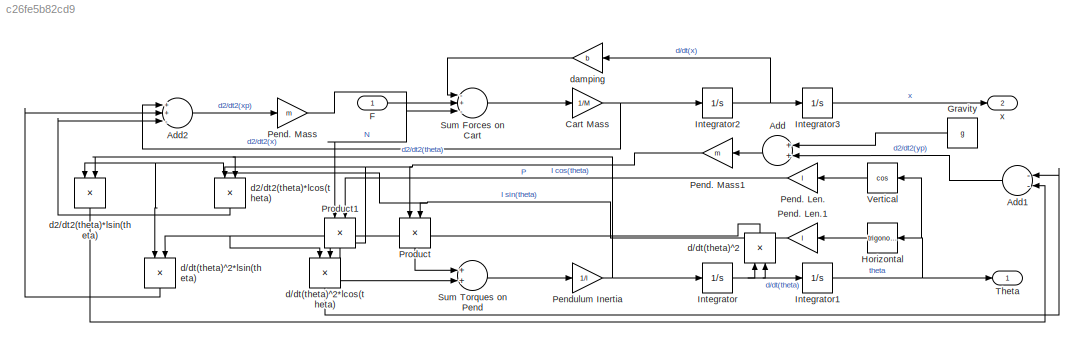
MODEL slx_c26fe5b82cd9
KIND model
CONFIG AbsTol = auto
CONFIG FixedStep = auto
CONFIG MaxStep = auto
CONFIG MinStep = auto
CONFIG RelTol = 1e-3
CONFIG SampleTimeConstraint = Unconstrained
CONFIG Solver = ode45
CONFIG SolverMode = Auto
CONFIG SolverName = ode45
CONFIG StartTime = 0.0
CONFIG StopTime = 2
BLOCK [Sum] Add
  InputSameDT = off
  OutDataTypeStr = Inherit: Inherit via internal rule
  Ports = [2, 1]
  SaturateOnIntegerOverflow = off
BLOCK [Sum] Add1
  InputSameDT = off
  Inputs = --
  OutDataTypeStr = Inherit: Inherit via internal rule
  Ports = [2, 1]
  SaturateOnIntegerOverflow = off
BLOCK [Sum] Add2
  InputSameDT = off
  Inputs = ++-
  OutDataTypeStr = Inherit: Inherit via internal rule
  Ports = [3, 1]
  SaturateOnIntegerOverflow = off
BLOCK [Gain] Cart Mass
  Gain = 1/M
  OutDataTypeStr = Inherit: Inherit via internal rule
  ParamDataTypeStr = Inherit: Inherit via internal rule
  SaturateOnIntegerOverflow = off
BLOCK [Inport] F
  IconDisplay = Port number
BLOCK [Constant] Gravity
  Value = g
BLOCK [Trigonometry] Horizontal
  Ports = [1, 1]
BLOCK [Integrator] Integrator
  Ports = [1, 1]
BLOCK [Integrator] Integrator1
  Ports = [1, 1]
BLOCK [Integrator] Integrator2
  Ports = [1, 1]
BLOCK [Integrator] Integrator3
  Ports = [1, 1]
BLOCK [Gain] Pend. Len.
  Gain = l
  OutDataTypeStr = Inherit: Inherit via internal rule
  ParamDataTypeStr = Inherit: Inherit via internal rule
  SaturateOnIntegerOverflow = off
BLOCK [Gain] Pend. Len.1
  Gain = l
  OutDataTypeStr = Inherit: Inherit via internal rule
  ParamDataTypeStr = Inherit: Inherit via internal rule
  SaturateOnIntegerOverflow = off
BLOCK [Gain] Pend. Mass
  Gain = m
  OutDataTypeStr = Inherit: Inherit via internal rule
  ParamDataTypeStr = Inherit: Inherit via internal rule
  SaturateOnIntegerOverflow = off
BLOCK [Gain] Pend. Mass1
  Gain = m
  OutDataTypeStr = Inherit: Inherit via internal rule
  ParamDataTypeStr = Inherit: Inherit via internal rule
  SaturateOnIntegerOverflow = off
BLOCK [Gain] Pendulum Inertia
  Gain = 1/l
  OutDataTypeStr = Inherit: Inherit via internal rule
  ParamDataTypeStr = Inherit: Inherit via internal rule
  SaturateOnIntegerOverflow = off
BLOCK [Product] Product
  InputSameDT = off
  OutDataTypeStr = Inherit: Inherit via internal rule
  Ports = [2, 1]
  RndMeth = Floor
  SaturateOnIntegerOverflow = off
BLOCK [Product] Product1
  InputSameDT = off
  OutDataTypeStr = Inherit: Inherit via internal rule
  Ports = [2, 1]
  RndMeth = Floor
  SaturateOnIntegerOverflow = off
BLOCK [Sum] Sum Forces on Cart
  InputSameDT = off
  Inputs = -+-
  OutDataTypeStr = Inherit: Inherit via internal rule
  Ports = [3, 1]
  SaturateOnIntegerOverflow = off
BLOCK [Sum] Sum Torques on Pend
  InputSameDT = off
  OutDataTypeStr = Inherit: Inherit via internal rule
  Ports = [2, 1]
  SaturateOnIntegerOverflow = off
BLOCK [Outport] Theta
  IconDisplay = Port number
BLOCK [Trigonometry] Vertical
  Operator = cos
  Ports = [1, 1]
BLOCK [Product] d//dt(theta)^2
  InputSameDT = off
  OutDataTypeStr = Inherit: Inherit via internal rule
  Ports = [2, 1]
  RndMeth = Floor
  SaturateOnIntegerOverflow = off
BLOCK [Product] d//dt(theta)^2*lcos(theta)
  InputSameDT = off
  OutDataTypeStr = Inherit: Inherit via internal rule
  Ports = [2, 1]
  RndMeth = Floor
  SaturateOnIntegerOverflow = off
BLOCK [Product] d//dt(theta)^2*lsin(theta)
  InputSameDT = off
  OutDataTypeStr = Inherit: Inherit via internal rule
  Ports = [2, 1]
  RndMeth = Floor
  SaturateOnIntegerOverflow = off
BLOCK [Product] d2//dt2(theta)*lcos(theta)
  InputSameDT = off
  OutDataTypeStr = Inherit: Inherit via internal rule
  Ports = [2, 1]
  RndMeth = Floor
  SaturateOnIntegerOverflow = off
BLOCK [Product] d2//dt2(theta)*lsin(theta)
  InputSameDT = off
  OutDataTypeStr = Inherit: Inherit via internal rule
  Ports = [2, 1]
  RndMeth = Floor
  SaturateOnIntegerOverflow = off
BLOCK [Gain] damping 
  Gain = b
  OutDataTypeStr = Inherit: Inherit via internal rule
  ParamDataTypeStr = Inherit: Inherit via internal rule
  SaturateOnIntegerOverflow = off
BLOCK [Outport] x
  IconDisplay = Port number
  Port = 2
LINE Add1:1 -> Add:2
LINE Add2:1 -> Pend. Mass:1
LINE Add:1 -> Pend. Mass1:1
NET Cart Mass:1 -> Add2:1, Integrator2:1
LINE F:1 -> Sum Forces on Cart:2
LINE Gravity:1 -> Add:1
LINE Horizontal:1 -> Pend. Len.1:1
NET Integrator1:1 -> Horizontal:1, Theta:1, Vertical:1
NET Integrator2:1 -> Integrator3:1, damping :1
LINE Integrator3:1 -> x:1
NET Integrator:1 -> Integrator1:1, d//dt(theta)^2:1, d//dt(theta)^2:2
NET Pend. Len.1:1 -> Product:2, d//dt(theta)^2*lsin(theta):1, d2//dt2(theta)*lsin(theta):1
LINE Pend. Len.:1 -> Product1:2
NET Pend. Mass1:1 -> Product:1, d//dt(theta)^2*lcos(theta):2, d2//dt2(theta)*lcos(theta):1
NET Pend. Mass:1 -> Product1:1, Sum Forces on Cart:3
NET Pendulum Inertia:1 -> Integrator:1, d2//dt2(theta)*lcos(theta):2, d2//dt2(theta)*lsin(theta):2
LINE Product1:1 -> Sum Torques on Pend:2
LINE Product:1 -> Sum Torques on Pend:1
LINE Sum Forces on Cart:1 -> Cart Mass:1
LINE Sum Torques on Pend:1 -> Pendulum Inertia:1
LINE Vertical:1 -> Pend. Len.:1
LINE d//dt(theta)^2*lcos(theta):1 -> Add1:1
LINE d//dt(theta)^2*lsin(theta):1 -> Add2:2
NET d//dt(theta)^2:1 -> d//dt(theta)^2*lcos(theta):1, d//dt(theta)^2*lsin(theta):2
LINE d2//dt2(theta)*lcos(theta):1 -> Add2:3
LINE d2//dt2(theta)*lsin(theta):1 -> Add1:2
LINE damping :1 -> Sum Forces on Cart:1
note: NET lines group one-source signal fan-out (src -> all destinations, sorted); 1:1 wires keep LINE
